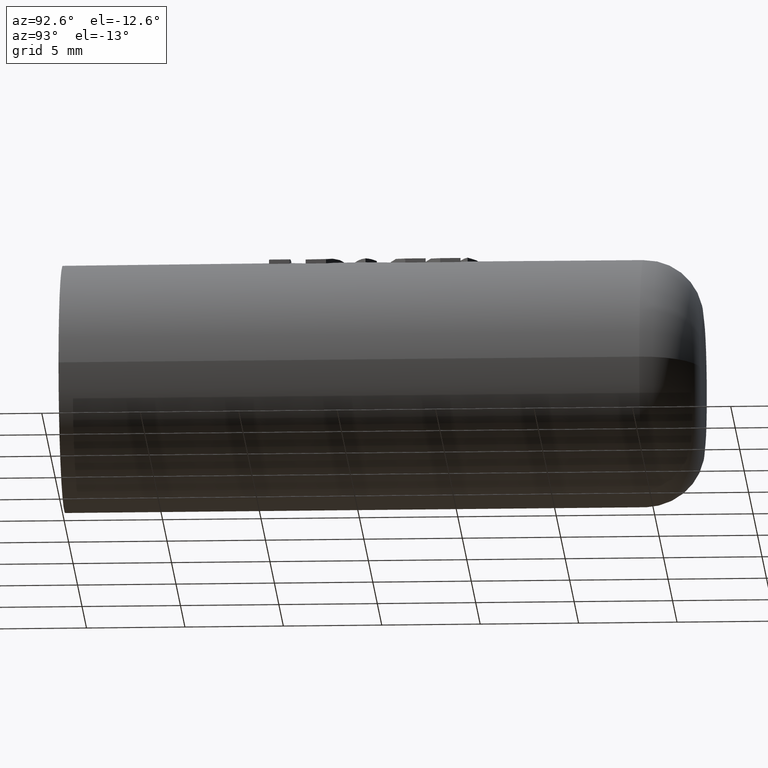
[diagram: clean part render]
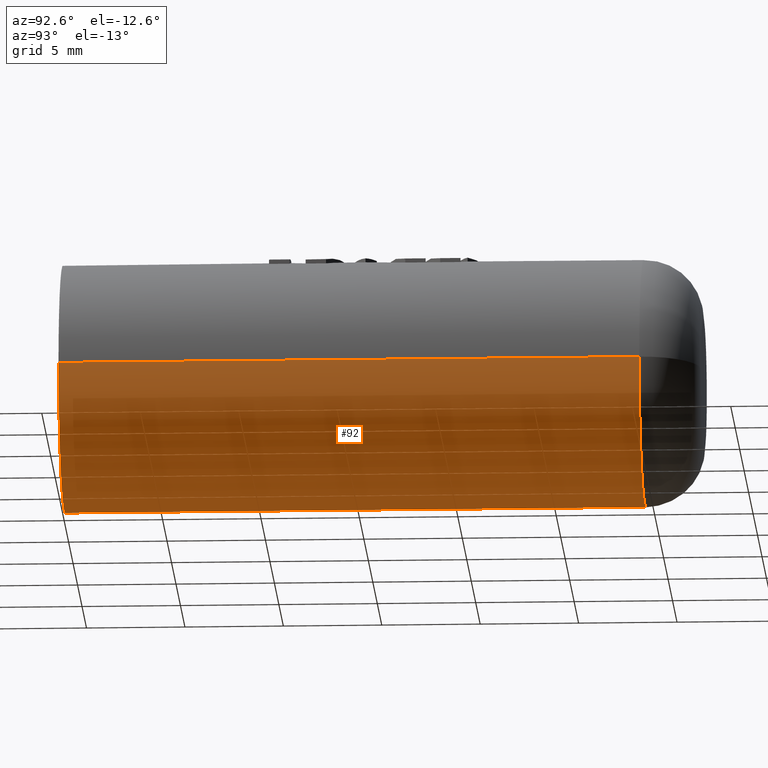
[diagram: same view with one face highlighted and labeled with its STEP entity id]
A machine part, auxiliary view. The second image highlights one B-rep face of the part: STEP entity #92.
In plain terms, the highlighted cylindrical surface (partial cylindrical patch) has radius 6.3 mm, axis along (-0, 1, 0).
Its self-contained STEP definition (entity closure, byte-faithful):
#92=ADVANCED_FACE('',(#185),#186,.T.);
#185=FACE_OUTER_BOUND('',#2256,.T.);
#186=CYLINDRICAL_SURFACE('',#2257,6.3);
#2256=EDGE_LOOP('',(#2463,#2464,#2465,#2466));
#2257=AXIS2_PLACEMENT_3D('',#2467,#2468,#2469);
#2463=ORIENTED_EDGE('',*,*,#3110,.F.);
#2464=ORIENTED_EDGE('',*,*,#3111,.F.);
#2465=ORIENTED_EDGE('',*,*,#3112,.F.);
#2466=ORIENTED_EDGE('',*,*,#3113,.T.);
#2467=CARTESIAN_POINT('',(0.0,0.0,0.0));
#2468=DIRECTION('',(-0.0,1.0,0.0));
#2469=DIRECTION('',(1.0,0.0,-6.12323399573677E-17));
#3110=EDGE_CURVE('',#3340,#3333,#3341,.T.);
#3111=EDGE_CURVE('',#3342,#3340,#3343,.T.);
#3112=EDGE_CURVE('',#3337,#3342,#3344,.T.);
#3113=EDGE_CURVE('',#3337,#3333,#3345,.T.);
#3333=VERTEX_POINT('',#4659);
#3337=VERTEX_POINT('',#4663);
#3340=VERTEX_POINT('',#4666);
#3341=LINE('',#4667,#4668);
#3342=VERTEX_POINT('',#4669);
#3343=CIRCLE('',#4670,6.3);
#3344=LINE('',#4671,#4672);
#3345=CIRCLE('',#4673,6.3);
#4659=CARTESIAN_POINT('',(6.3,29.5,-3.85763741731417E-16));
#4663=CARTESIAN_POINT('',(-6.3,29.5,-3.85763741731416E-16));
#4666=CARTESIAN_POINT('',(6.3,-6.93889390390723E-15,-3.85763741731417E-16));
#4667=CARTESIAN_POINT('',(6.3,0.0,3.85763741731416E-16));
#4668=VECTOR('',#5122,1.0);
#4669=CARTESIAN_POINT('',(-6.3,-7.105427357601E-15,-3.85763741731416E-16));
#4670=AXIS2_PLACEMENT_3D('',#5123,#5124,#5125);
#4671=CARTESIAN_POINT('',(-6.3,0.0,-3.85763741731416E-16));
#4672=VECTOR('',#5126,1.0);
#4673=AXIS2_PLACEMENT_3D('',#5127,#5128,#5129);
#5122=DIRECTION('',(-0.0,1.0,-0.0));
#5123=CARTESIAN_POINT('',(0.0,-6.93889390390723E-15,0.0));
#5124=DIRECTION('',(0.0,-1.0,0.0));
#5125=DIRECTION('',(1.0,0.0,-6.12323399573677E-17));
#5126=DIRECTION('',(-0.0,-1.0,-0.0));
#5127=CARTESIAN_POINT('',(0.0,29.5,0.0));
#5128=DIRECTION('',(0.0,-1.0,0.0));
#5129=DIRECTION('',(1.0,0.0,-6.12323399573677E-17));